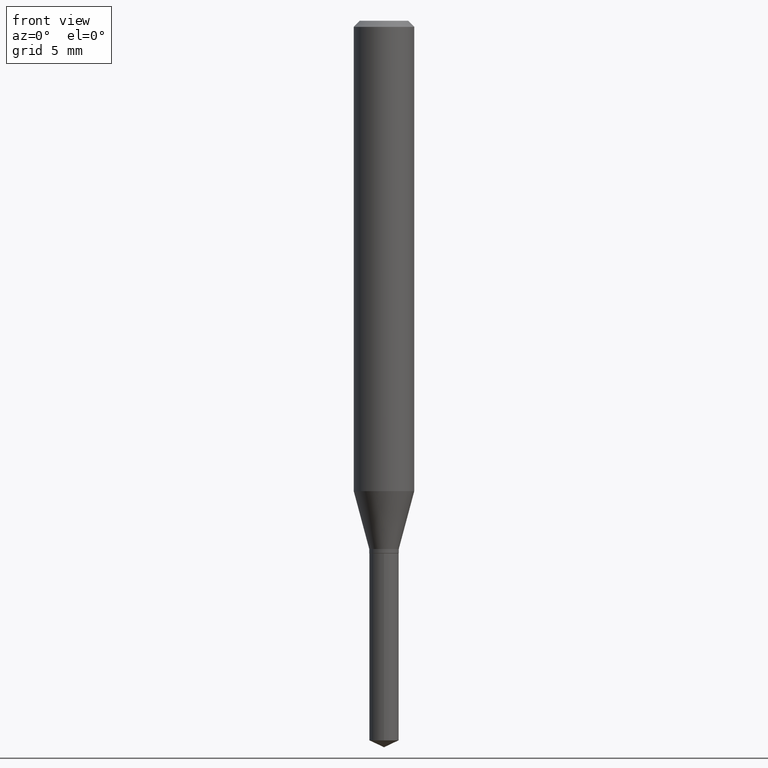
[diagram: clean part render]
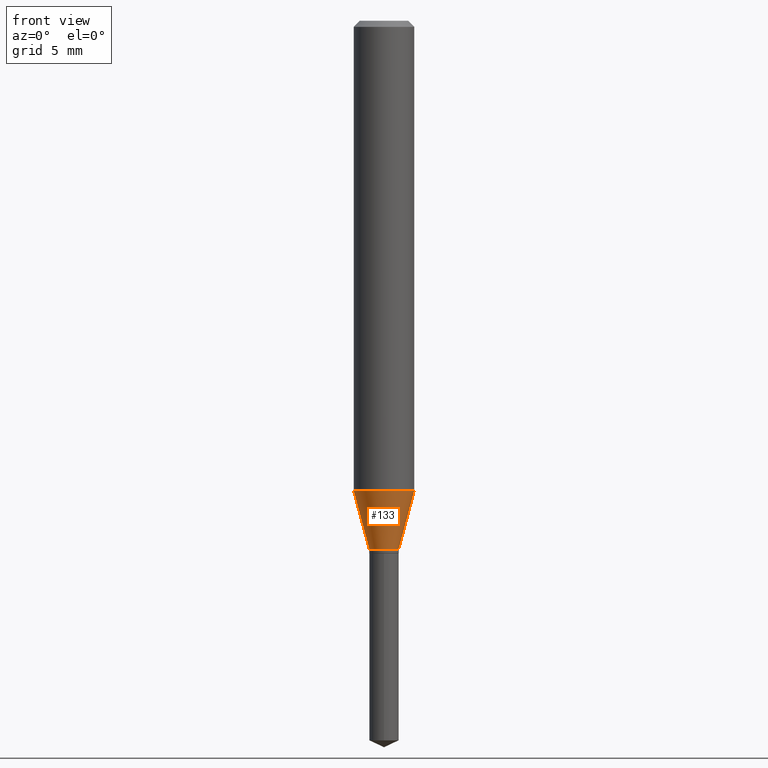
[diagram: same view with one face highlighted and labeled with its STEP entity id]
A machine part, front view. The second image highlights one B-rep face of the part: STEP entity #133.
In plain terms, the highlighted conical surface has half-angle 15 deg.
Its self-contained STEP definition (entity closure, byte-faithful):
#33 = FACE_OUTER_BOUND ( 'NONE', #398, .T. ) ;
#41 = CARTESIAN_POINT ( 'NONE',  ( 0.03049999999999999586, -4.020789909811766369E-15, -1.090600000000000014 ) ) ;
#51 = LINE ( 'NONE', #84, #142 ) ;
#62 = CARTESIAN_POINT ( 'NONE',  ( -0.06250000000000012490, -2.946747994284551649E-15, -0.9711743741577958389 ) ) ;
#67 = CARTESIAN_POINT ( 'NONE',  ( 0.03049999999999999586, -4.020789909811766369E-15, -1.090600000000000014 ) ) ;
#80 = CONICAL_SURFACE ( 'NONE', #411, 0.03049999999999999586, 0.2617993877991499629 ) ;
#84 = CARTESIAN_POINT ( 'NONE',  ( -0.03049999999999999586, -3.591094013735504691E-15, -1.090600000000000014 ) ) ;
#98 = LINE ( 'NONE', #67, #329 ) ;
#107 = VERTEX_POINT ( 'NONE', #154 ) ;
#115 = DIRECTION ( 'NONE',  ( 1.000000000000000000, -6.982962677686269866E-15, 0.000000000000000000 ) ) ;
#133 = ADVANCED_FACE ( 'NONE', ( #33 ), #80, .T. ) ;
#142 = VECTOR ( 'NONE', #394, 39.37007874015748854 ) ;
#144 = EDGE_CURVE ( 'NONE', #107, #145, #294, .T. ) ;
#145 = VERTEX_POINT ( 'NONE', #41 ) ;
#154 = CARTESIAN_POINT ( 'NONE',  ( -0.03049999999999999586, -3.606631105693356467E-15, -1.090600000000000014 ) ) ;
#169 = DIRECTION ( 'NONE',  ( 1.000000000000000000, -6.982962677686264344E-15, 0.000000000000000000 ) ) ;
#174 = AXIS2_PLACEMENT_3D ( 'NONE', #195, #191, #115 ) ;
#185 = ORIENTED_EDGE ( 'NONE', *, *, #261, .F. ) ;
#191 = DIRECTION ( 'NONE',  ( -2.445468806185136597E-29, 3.491481338843145583E-15, 1.000000000000000000 ) ) ;
#195 = CARTESIAN_POINT ( 'NONE',  ( 2.667028280025510409E-29, -3.807809548142335045E-15, -1.090600000000000014 ) ) ;
#222 = EDGE_CURVE ( 'NONE', #435, #331, #386, .T. ) ;
#232 = DIRECTION ( 'NONE',  ( -2.445468806185136597E-29, 3.491481338843145583E-15, 1.000000000000000000 ) ) ;
#237 = AXIS2_PLACEMENT_3D ( 'NONE', #466, #432, #169 ) ;
#247 = ORIENTED_EDGE ( 'NONE', *, *, #222, .F. ) ;
#251 = DIRECTION ( 'NONE',  ( 0.2588190451025212391, 1.565188264969622362E-15, 0.9659258262890679791 ) ) ;
#261 = EDGE_CURVE ( 'NONE', #107, #435, #51, .T. ) ;
#269 = CARTESIAN_POINT ( 'NONE',  ( 2.667028280025510409E-29, -3.807809548142335045E-15, -1.090600000000000014 ) ) ;
#283 = CARTESIAN_POINT ( 'NONE',  ( 0.06250000000000012490, -3.827272371490007513E-15, -0.9711743741577958389 ) ) ;
#294 = CIRCLE ( 'NONE', #174, 0.03049999999999999586 ) ;
#298 = ORIENTED_EDGE ( 'NONE', *, *, #144, .T. ) ;
#329 = VECTOR ( 'NONE', #251, 39.37007874015748854 ) ;
#331 = VERTEX_POINT ( 'NONE', #283 ) ;
#386 = CIRCLE ( 'NONE', #237, 0.06250000000000012490 ) ;
#394 = DIRECTION ( 'NONE',  ( -0.2588190451025212391, 5.211531920934549464E-15, 0.9659258262890679791 ) ) ;
#398 = EDGE_LOOP ( 'NONE', ( #185, #298, #409, #247 ) ) ;
#409 = ORIENTED_EDGE ( 'NONE', *, *, #476, .T. ) ;
#411 = AXIS2_PLACEMENT_3D ( 'NONE', #269, #232, #417 ) ;
#417 = DIRECTION ( 'NONE',  ( 1.000000000000000000, -6.982962677686269866E-15, 0.000000000000000000 ) ) ;
#432 = DIRECTION ( 'NONE',  ( -2.445468806185136597E-29, 3.491481338843145583E-15, 1.000000000000000000 ) ) ;
#435 = VERTEX_POINT ( 'NONE', #62 ) ;
#466 = CARTESIAN_POINT ( 'NONE',  ( 2.374976637369262304E-29, -3.390837204134615054E-15, -0.9711743741577958389 ) ) ;
#476 = EDGE_CURVE ( 'NONE', #145, #331, #98, .T. ) ;